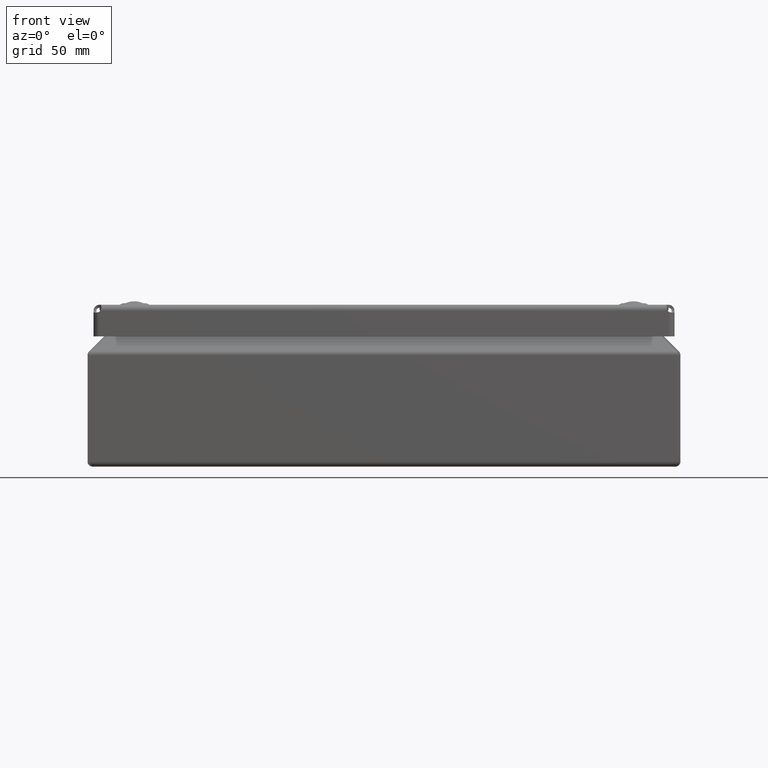
[diagram: clean part render]
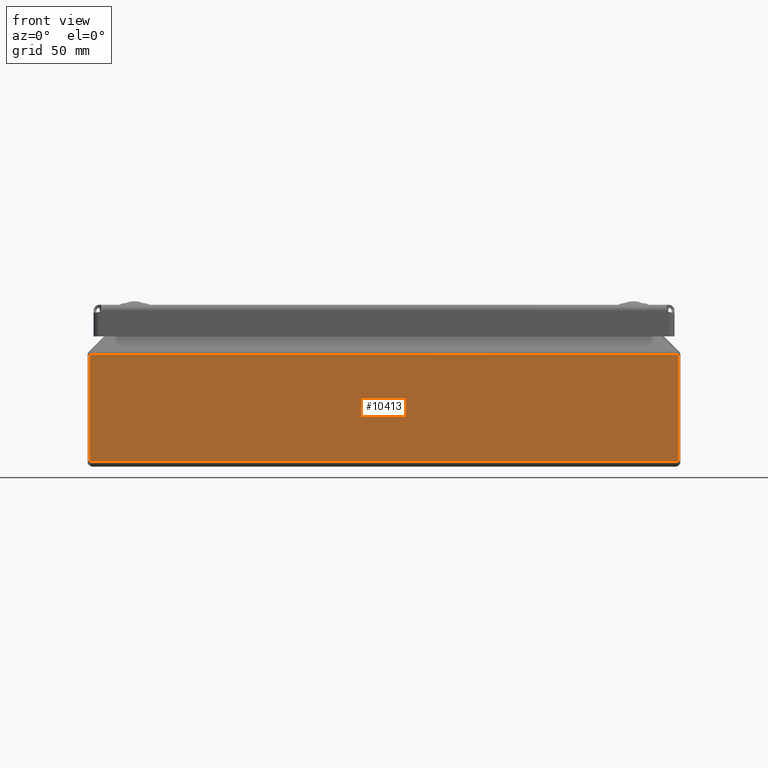
[diagram: same view with one face highlighted and labeled with its STEP entity id]
A machine part, front view. The second image highlights one B-rep face of the part: STEP entity #10413.
In plain terms, the highlighted planar face has unit normal (-0, -1, 0).
Its self-contained STEP definition (entity closure, byte-faithful):
#886 = CARTESIAN_POINT ( 'NONE',  ( 148.7499292893454900, -100.0000000000003700, 56.48223304703280700 ) ) ;
#10279 = VERTEX_POINT ( 'NONE', #24394 ) ;
#10281 = EDGE_CURVE ( 'NONE', #10282, #10279, #24393, .T. ) ;
#10282 = VERTEX_POINT ( 'NONE', #24389 ) ;
#10352 = EDGE_CURVE ( 'NONE', #10407, #13060, #24530, .T. ) ;
#10395 = EDGE_CURVE ( 'NONE', #10279, #10407, #24641, .T. ) ;
#10407 = VERTEX_POINT ( 'NONE', #24679 ) ;
#10413 = ADVANCED_FACE ( 'NONE', ( #24669 ), #24668, .T. ) ;
#10414 = EDGE_LOOP ( 'NONE', ( #10415, #10416, #10418, #10419 ) ) ;
#10415 = ORIENTED_EDGE ( 'NONE', *, *, #10352, .T. ) ;
#10416 = ORIENTED_EDGE ( 'NONE', *, *, #10417, .F. ) ;
#10417 = EDGE_CURVE ( 'NONE', #10282, #13060, #24718, .T. ) ;
#10418 = ORIENTED_EDGE ( 'NONE', *, *, #10281, .T. ) ;
#10419 = ORIENTED_EDGE ( 'NONE', *, *, #10395, .T. ) ;
#13060 = VERTEX_POINT ( 'NONE', #886 ) ;
#24389 = CARTESIAN_POINT ( 'NONE',  ( -148.7499292893423900, -100.0000000000002800, 56.48223304703283500 ) ) ;
#24390 = DIRECTION ( 'NONE',  ( 0.0000000000000000000, 0.0000000000000000000, -1.000000000000000000 ) ) ;
#24391 = VECTOR ( 'NONE', #24390, 1000.000000000000000 ) ;
#24392 = CARTESIAN_POINT ( 'NONE',  ( -148.7499292893423900, -100.0000000000002800, 56.48223304703283500 ) ) ;
#24393 = LINE ( 'NONE', #24392, #24391 ) ;
#24394 = CARTESIAN_POINT ( 'NONE',  ( -148.7499292893119800, -100.0000000000002800, 2.500000000000036900 ) ) ;
#24528 = VECTOR ( 'NONE', #24572, 1000.000000000000000 ) ;
#24529 = CARTESIAN_POINT ( 'NONE',  ( 148.7499292893155300, -100.0000000000003400, 56.48223304703283500 ) ) ;
#24530 = LINE ( 'NONE', #24529, #24528 ) ;
#24572 = DIRECTION ( 'NONE',  ( 0.0000000000000000000, 0.0000000000000000000, 1.000000000000000000 ) ) ;
#24638 = DIRECTION ( 'NONE',  ( 1.000000000000000000, -1.836909530733565900E-016, 0.0000000000000000000 ) ) ;
#24639 = VECTOR ( 'NONE', #24638, 1000.000000000000000 ) ;
#24640 = CARTESIAN_POINT ( 'NONE',  ( -1636.249999999999800, -100.0000000000000000, 2.500000000000036900 ) ) ;
#24641 = LINE ( 'NONE', #24640, #24639 ) ;
#24668 = PLANE ( 'NONE',  #24722 ) ;
#24669 = FACE_OUTER_BOUND ( 'NONE', #10414, .T. ) ;
#24679 = CARTESIAN_POINT ( 'NONE',  ( 148.7499292893155300, -100.0000000000003400, 2.500000000000036900 ) ) ;
#24715 = DIRECTION ( 'NONE',  ( 1.000000000000000000, -1.836909530733565900E-016, 0.0000000000000000000 ) ) ;
#24716 = VECTOR ( 'NONE', #24715, 1000.000000000000000 ) ;
#24717 = CARTESIAN_POINT ( 'NONE',  ( -1636.249999999999800, -100.0000000000000000, 56.48223304703283500 ) ) ;
#24718 = LINE ( 'NONE', #24717, #24716 ) ;
#24719 = DIRECTION ( 'NONE',  ( 0.0000000000000000000, 0.0000000000000000000, -1.000000000000000000 ) ) ;
#24720 = DIRECTION ( 'NONE',  ( -1.836909530733565900E-016, -1.000000000000000000, 0.0000000000000000000 ) ) ;
#24721 = CARTESIAN_POINT ( 'NONE',  ( -1636.249999999999800, -100.0000000000000000, 56.48223304703283500 ) ) ;
#24722 = AXIS2_PLACEMENT_3D ( 'NONE', #24721, #24720, #24719 ) ;